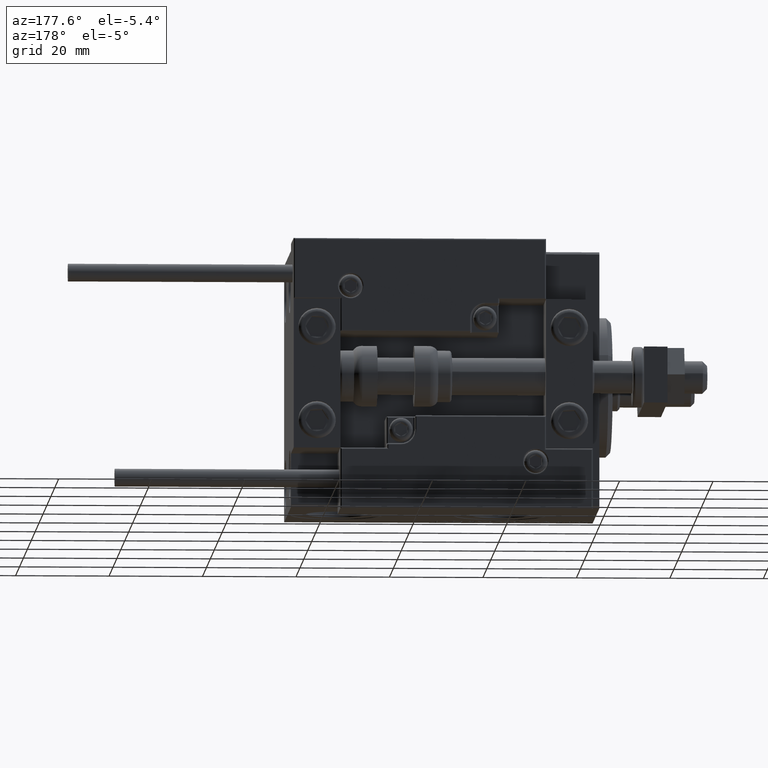
[diagram: clean part render]
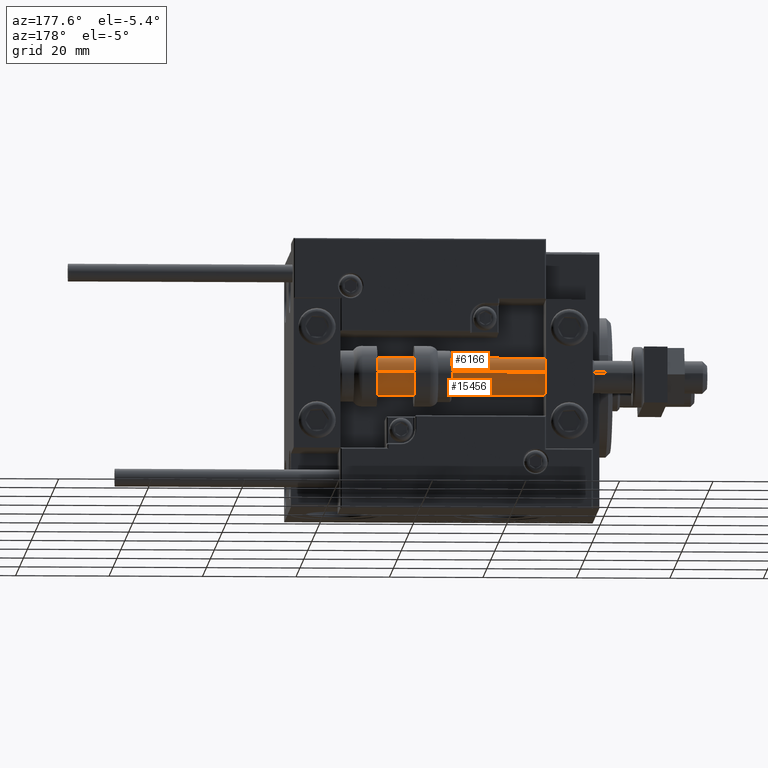
[diagram: same view with one multi-face feature highlighted, each face labeled with its STEP entity id]
A machine part, auxiliary view. The highlighted faces form ONE feature: a constant-radius fillet chain: 2 tangent blend faces with common blend radius 4 mm. The faces share edges in the B-rep.
Their STEP definitions:
[1] entity #15456 (Cylinder):
#440 = CARTESIAN_POINT ( 'NONE',  ( 0.000000000000000000, 0.000000000000000000, 66.00000000000000000 ) ) ;
#463 = ORIENTED_EDGE ( 'NONE', *, *, #37727, .T. ) ;
#2246 = DIRECTION ( 'NONE',  ( -0.000000000000000000, -0.000000000000000000, -1.000000000000000000 ) ) ;
#2548 = VERTEX_POINT ( 'NONE', #30926 ) ;
#5544 = AXIS2_PLACEMENT_3D ( 'NONE', #440, #11250, #16115 ) ;
#6537 = DIRECTION ( 'NONE',  ( 1.000000000000000000, 0.000000000000000000, 0.000000000000000000 ) ) ;
#8062 = CARTESIAN_POINT ( 'NONE',  ( 4.000000000000000000, 4.898587196589412829E-16, 2.000000000000029310 ) ) ;
#11250 = DIRECTION ( 'NONE',  ( -0.000000000000000000, -0.000000000000000000, -1.000000000000000000 ) ) ;
#11252 = CARTESIAN_POINT ( 'NONE',  ( 0.000000000000000000, 0.000000000000000000, 66.00000000000000000 ) ) ;
#11623 = EDGE_CURVE ( 'NONE', #34285, #27259, #34099, .T. ) ;
#12156 = EDGE_CURVE ( 'NONE', #2548, #23064, #35808, .T. ) ;
#12928 = DIRECTION ( 'NONE',  ( -0.000000000000000000, -0.000000000000000000, -1.000000000000000000 ) ) ;
#14338 = DIRECTION ( 'NONE',  ( 1.000000000000000000, 0.000000000000000000, 0.000000000000000000 ) ) ;
#15456 = ADVANCED_FACE ( 'NONE', ( #46466 ), #38990, .T. ) ;
#15986 = CARTESIAN_POINT ( 'NONE',  ( -4.000000000000000000, 0.000000000000000000, 2.000000000000029310 ) ) ;
#16115 = DIRECTION ( 'NONE',  ( -1.000000000000000000, 0.000000000000000000, 0.000000000000000000 ) ) ;
#20225 = AXIS2_PLACEMENT_3D ( 'NONE', #11252, #26434, #14338 ) ;
#22317 = CARTESIAN_POINT ( 'NONE',  ( -4.000000000000000000, 0.000000000000000000, 66.00000000000000000 ) ) ;
#22820 = CARTESIAN_POINT ( 'NONE',  ( -4.000000000000000000, 0.000000000000000000, 66.00000000000000000 ) ) ;
#23064 = VERTEX_POINT ( 'NONE', #8062 ) ;
#23976 = ORIENTED_EDGE ( 'NONE', *, *, #12156, .F. ) ;
#26079 = CARTESIAN_POINT ( 'NONE',  ( 0.000000000000000000, 0.000000000000000000, 2.000000000000029310 ) ) ;
#26434 = DIRECTION ( 'NONE',  ( 0.000000000000000000, 0.000000000000000000, 1.000000000000000000 ) ) ;
#27259 = VERTEX_POINT ( 'NONE', #15986 ) ;
#28225 = ORIENTED_EDGE ( 'NONE', *, *, #49330, .F. ) ;
#29167 = VECTOR ( 'NONE', #12928, 1000.000000000000000 ) ;
#29831 = AXIS2_PLACEMENT_3D ( 'NONE', #26079, #41744, #6537 ) ;
#30926 = CARTESIAN_POINT ( 'NONE',  ( 4.000000000000000000, 4.898587196589412829E-16, 66.00000000000000000 ) ) ;
#33862 = EDGE_LOOP ( 'NONE', ( #23976, #28225, #46499, #463 ) ) ;
#34099 = LINE ( 'NONE', #22820, #43080 ) ;
#34285 = VERTEX_POINT ( 'NONE', #22317 ) ;
#35808 = LINE ( 'NONE', #48146, #29167 ) ;
#37727 = EDGE_CURVE ( 'NONE', #27259, #23064, #38855, .T. ) ;
#38855 = CIRCLE ( 'NONE', #29831, 4.000000000000000000 ) ;
#38990 = CYLINDRICAL_SURFACE ( 'NONE', #5544, 4.000000000000000000 ) ;
#41744 = DIRECTION ( 'NONE',  ( -0.000000000000000000, -0.000000000000000000, 1.000000000000000000 ) ) ;
#43080 = VECTOR ( 'NONE', #2246, 1000.000000000000000 ) ;
#45677 = CIRCLE ( 'NONE', #20225, 4.000000000000000000 ) ;
#46466 = FACE_OUTER_BOUND ( 'NONE', #33862, .T. ) ;
#46499 = ORIENTED_EDGE ( 'NONE', *, *, #11623, .T. ) ;
#48146 = CARTESIAN_POINT ( 'NONE',  ( 4.000000000000000000, 4.898587196589412829E-16, 66.00000000000000000 ) ) ;
#49330 = EDGE_CURVE ( 'NONE', #34285, #2548, #45677, .T. ) ;
[2] entity #6166 (Cylinder):
#423 = CIRCLE ( 'NONE', #35718, 4.000000000000000000 ) ;
#2246 = DIRECTION ( 'NONE',  ( -0.000000000000000000, -0.000000000000000000, -1.000000000000000000 ) ) ;
#2532 = DIRECTION ( 'NONE',  ( 0.000000000000000000, 0.000000000000000000, 1.000000000000000000 ) ) ;
#2548 = VERTEX_POINT ( 'NONE', #30926 ) ;
#5199 = EDGE_CURVE ( 'NONE', #2548, #34285, #9891, .T. ) ;
#6166 = ADVANCED_FACE ( 'NONE', ( #50719 ), #11629, .T. ) ;
#8062 = CARTESIAN_POINT ( 'NONE',  ( 4.000000000000000000, 4.898587196589412829E-16, 2.000000000000029310 ) ) ;
#9476 = CARTESIAN_POINT ( 'NONE',  ( 0.000000000000000000, 0.000000000000000000, 66.00000000000000000 ) ) ;
#9891 = CIRCLE ( 'NONE', #44385, 4.000000000000000000 ) ;
#11623 = EDGE_CURVE ( 'NONE', #34285, #27259, #34099, .T. ) ;
#11629 = CYLINDRICAL_SURFACE ( 'NONE', #29621, 4.000000000000000000 ) ;
#12156 = EDGE_CURVE ( 'NONE', #2548, #23064, #35808, .T. ) ;
#12928 = DIRECTION ( 'NONE',  ( -0.000000000000000000, -0.000000000000000000, -1.000000000000000000 ) ) ;
#15238 = CARTESIAN_POINT ( 'NONE',  ( 0.000000000000000000, 0.000000000000000000, 66.00000000000000000 ) ) ;
#15986 = CARTESIAN_POINT ( 'NONE',  ( -4.000000000000000000, 0.000000000000000000, 2.000000000000029310 ) ) ;
#17096 = CARTESIAN_POINT ( 'NONE',  ( 0.000000000000000000, 0.000000000000000000, 2.000000000000029310 ) ) ;
#18199 = DIRECTION ( 'NONE',  ( 1.000000000000000000, 0.000000000000000000, 0.000000000000000000 ) ) ;
#20198 = DIRECTION ( 'NONE',  ( 1.000000000000000000, 0.000000000000000000, 0.000000000000000000 ) ) ;
#22144 = ORIENTED_EDGE ( 'NONE', *, *, #5199, .F. ) ;
#22317 = CARTESIAN_POINT ( 'NONE',  ( -4.000000000000000000, 0.000000000000000000, 66.00000000000000000 ) ) ;
#22820 = CARTESIAN_POINT ( 'NONE',  ( -4.000000000000000000, 0.000000000000000000, 66.00000000000000000 ) ) ;
#23064 = VERTEX_POINT ( 'NONE', #8062 ) ;
#26462 = ORIENTED_EDGE ( 'NONE', *, *, #11623, .F. ) ;
#26464 = EDGE_LOOP ( 'NONE', ( #22144, #34161, #48649, #26462 ) ) ;
#27064 = DIRECTION ( 'NONE',  ( -1.000000000000000000, 0.000000000000000000, 0.000000000000000000 ) ) ;
#27259 = VERTEX_POINT ( 'NONE', #15986 ) ;
#29167 = VECTOR ( 'NONE', #12928, 1000.000000000000000 ) ;
#29621 = AXIS2_PLACEMENT_3D ( 'NONE', #15238, #31676, #27064 ) ;
#30926 = CARTESIAN_POINT ( 'NONE',  ( 4.000000000000000000, 4.898587196589412829E-16, 66.00000000000000000 ) ) ;
#31676 = DIRECTION ( 'NONE',  ( -0.000000000000000000, -0.000000000000000000, -1.000000000000000000 ) ) ;
#33151 = EDGE_CURVE ( 'NONE', #23064, #27259, #423, .T. ) ;
#34099 = LINE ( 'NONE', #22820, #43080 ) ;
#34161 = ORIENTED_EDGE ( 'NONE', *, *, #12156, .T. ) ;
#34285 = VERTEX_POINT ( 'NONE', #22317 ) ;
#35718 = AXIS2_PLACEMENT_3D ( 'NONE', #17096, #44593, #20198 ) ;
#35808 = LINE ( 'NONE', #48146, #29167 ) ;
#43080 = VECTOR ( 'NONE', #2246, 1000.000000000000000 ) ;
#44385 = AXIS2_PLACEMENT_3D ( 'NONE', #9476, #2532, #18199 ) ;
#44593 = DIRECTION ( 'NONE',  ( -0.000000000000000000, -0.000000000000000000, 1.000000000000000000 ) ) ;
#48146 = CARTESIAN_POINT ( 'NONE',  ( 4.000000000000000000, 4.898587196589412829E-16, 66.00000000000000000 ) ) ;
#48649 = ORIENTED_EDGE ( 'NONE', *, *, #33151, .T. ) ;
#50719 = FACE_OUTER_BOUND ( 'NONE', #26464, .T. ) ;